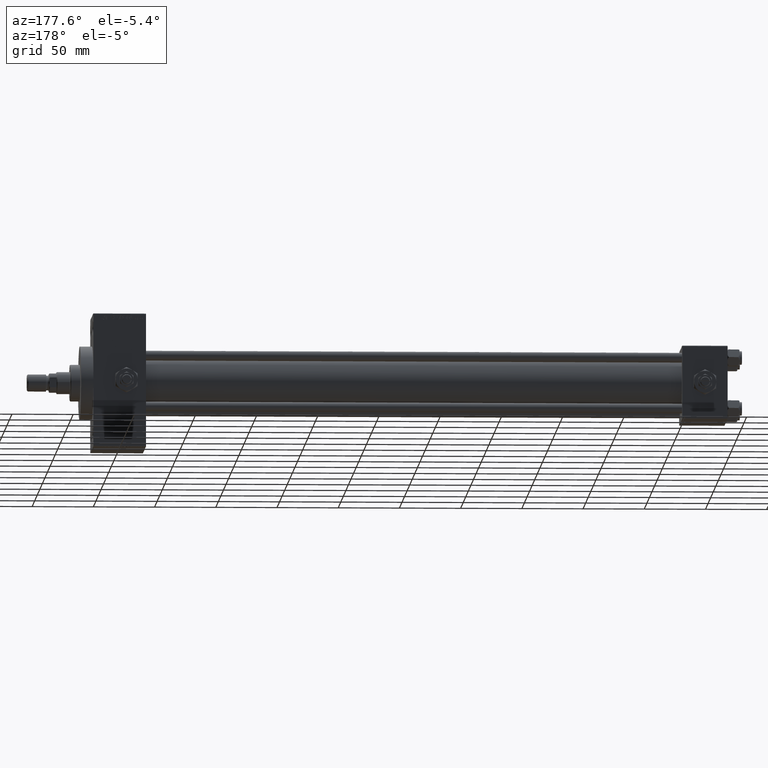
[diagram: clean part render]
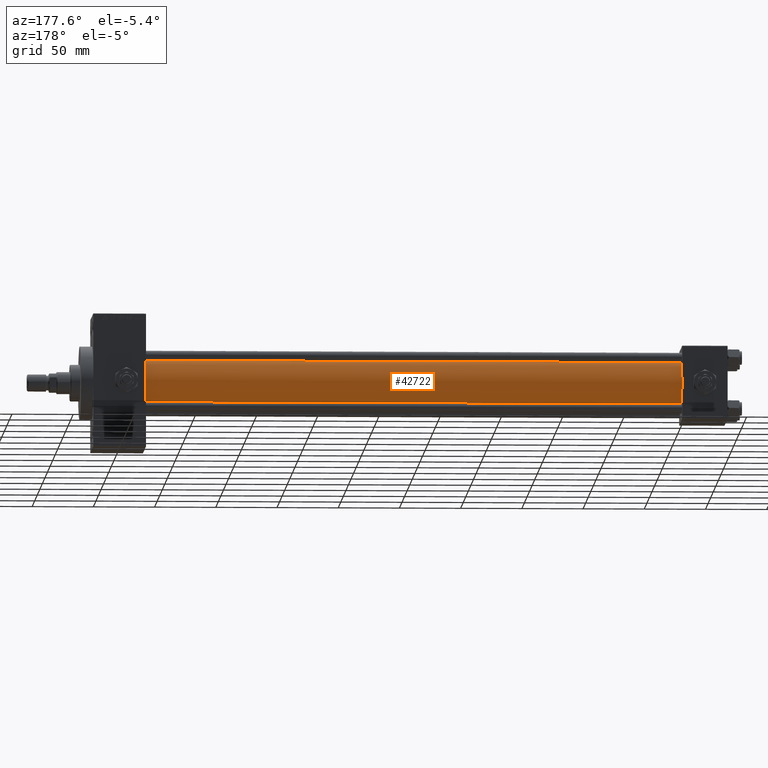
[diagram: same view with one face highlighted and labeled with its STEP entity id]
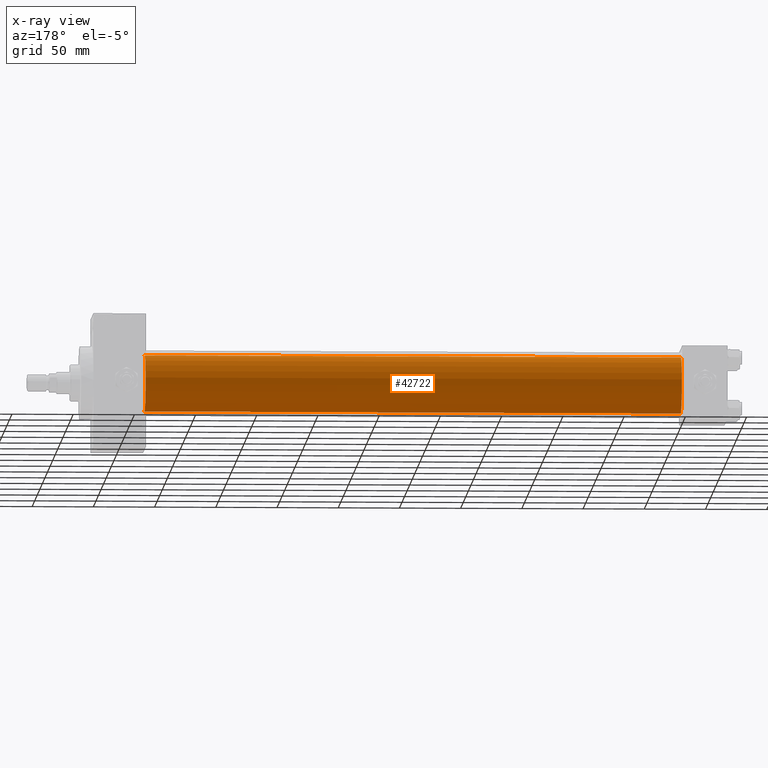
[diagram: x-ray of the same camera — body ghosted, the highlighted face saturated]
A machine part, auxiliary view. The second image highlights one B-rep face of the part: STEP entity #42722.
The next image is the same camera in x-ray: the body ghosted, the highlighted face saturated — about 0% of this face is hidden behind the body in this view.
In plain terms, the highlighted cylindrical surface (edge-blend (fillet) strip) has radius 23 mm, axis along (-1, -0, -0).
Its self-contained STEP definition (entity closure, byte-faithful):
#1147 = ORIENTED_EDGE ( 'NONE', *, *, #41749, .T. ) ;
#2181 = VECTOR ( 'NONE', #34013, 1000.000000000000000 ) ;
#3084 = DIRECTION ( 'NONE',  ( 0.000000000000000000, 0.000000000000000000, -1.000000000000000000 ) ) ;
#3331 = ORIENTED_EDGE ( 'NONE', *, *, #13701, .T. ) ;
#6614 = DIRECTION ( 'NONE',  ( -1.000000000000000000, -0.000000000000000000, -0.000000000000000000 ) ) ;
#6843 = DIRECTION ( 'NONE',  ( 1.000000000000000000, 0.000000000000000000, 0.000000000000000000 ) ) ;
#7859 = DIRECTION ( 'NONE',  ( 0.000000000000000000, 0.000000000000000000, 1.000000000000000000 ) ) ;
#8237 = VERTEX_POINT ( 'NONE', #43792 ) ;
#11271 = CIRCLE ( 'NONE', #36993, 23.00000000000000000 ) ;
#13701 = EDGE_CURVE ( 'NONE', #25156, #8237, #49134, .T. ) ;
#15052 = VERTEX_POINT ( 'NONE', #41649 ) ;
#15155 = LINE ( 'NONE', #42071, #2181 ) ;
#18353 = ORIENTED_EDGE ( 'NONE', *, *, #33334, .F. ) ;
#21911 = CARTESIAN_POINT ( 'NONE',  ( 475.0000000000000000, 2.146024240737016609E-16, -23.00000000000000000 ) ) ;
#22962 = FACE_OUTER_BOUND ( 'NONE', #24346, .T. ) ;
#23663 = VECTOR ( 'NONE', #6614, 1000.000000000000000 ) ;
#24346 = EDGE_LOOP ( 'NONE', ( #18353, #3331, #1147, #39137 ) ) ;
#25156 = VERTEX_POINT ( 'NONE', #21911 ) ;
#26489 = CARTESIAN_POINT ( 'NONE',  ( 475.0000000000000000, 2.146024240737016609E-16, -23.00000000000000000 ) ) ;
#29473 = AXIS2_PLACEMENT_3D ( 'NONE', #33032, #43878, #32784 ) ;
#30008 = DIRECTION ( 'NONE',  ( -1.000000000000000000, -0.000000000000000000, -0.000000000000000000 ) ) ;
#32784 = DIRECTION ( 'NONE',  ( 0.000000000000000000, 0.000000000000000000, 1.000000000000000000 ) ) ;
#33032 = CARTESIAN_POINT ( 'NONE',  ( 36.99999999999997868, -2.602085213965210642E-15, 0.000000000000000000 ) ) ;
#33334 = EDGE_CURVE ( 'NONE', #25156, #41672, #11271, .T. ) ;
#33776 = CYLINDRICAL_SURFACE ( 'NONE', #49593, 23.00000000000000000 ) ;
#34013 = DIRECTION ( 'NONE',  ( -1.000000000000000000, -0.000000000000000000, -0.000000000000000000 ) ) ;
#35123 = CIRCLE ( 'NONE', #29473, 23.00000000000000000 ) ;
#36993 = AXIS2_PLACEMENT_3D ( 'NONE', #41321, #6843, #3084 ) ;
#39137 = ORIENTED_EDGE ( 'NONE', *, *, #41813, .F. ) ;
#39610 = CARTESIAN_POINT ( 'NONE',  ( 475.0000000000000000, -2.602085213965210642E-15, 23.00000000000000000 ) ) ;
#41321 = CARTESIAN_POINT ( 'NONE',  ( 475.0000000000000000, -2.602085213965210642E-15, 0.000000000000000000 ) ) ;
#41649 = CARTESIAN_POINT ( 'NONE',  ( 36.99999999999997868, -2.602085213965210642E-15, 23.00000000000000000 ) ) ;
#41672 = VERTEX_POINT ( 'NONE', #39610 ) ;
#41749 = EDGE_CURVE ( 'NONE', #8237, #15052, #35123, .T. ) ;
#41813 = EDGE_CURVE ( 'NONE', #41672, #15052, #15155, .T. ) ;
#42071 = CARTESIAN_POINT ( 'NONE',  ( 475.0000000000000000, -2.602085213965210642E-15, 23.00000000000000000 ) ) ;
#42722 = ADVANCED_FACE ( 'NONE', ( #22962 ), #33776, .T. ) ;
#43792 = CARTESIAN_POINT ( 'NONE',  ( 36.99999999999997868, 2.146024240737016609E-16, -23.00000000000000000 ) ) ;
#43878 = DIRECTION ( 'NONE',  ( 1.000000000000000000, -0.000000000000000000, 0.000000000000000000 ) ) ;
#49129 = CARTESIAN_POINT ( 'NONE',  ( 475.0000000000000000, -2.602085213965210642E-15, 0.000000000000000000 ) ) ;
#49134 = LINE ( 'NONE', #26489, #23663 ) ;
#49593 = AXIS2_PLACEMENT_3D ( 'NONE', #49129, #30008, #7859 ) ;